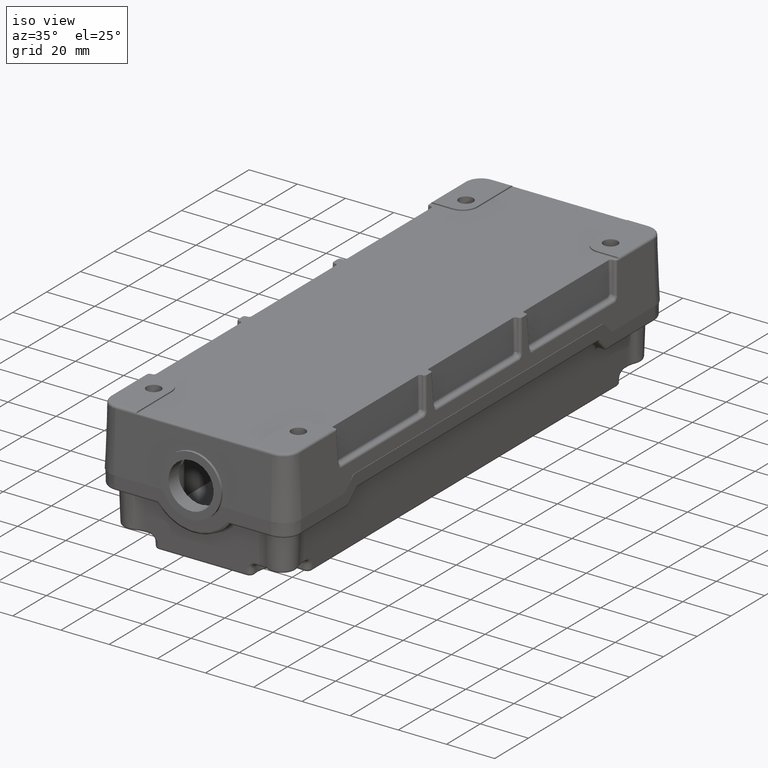
[diagram: clean part render]
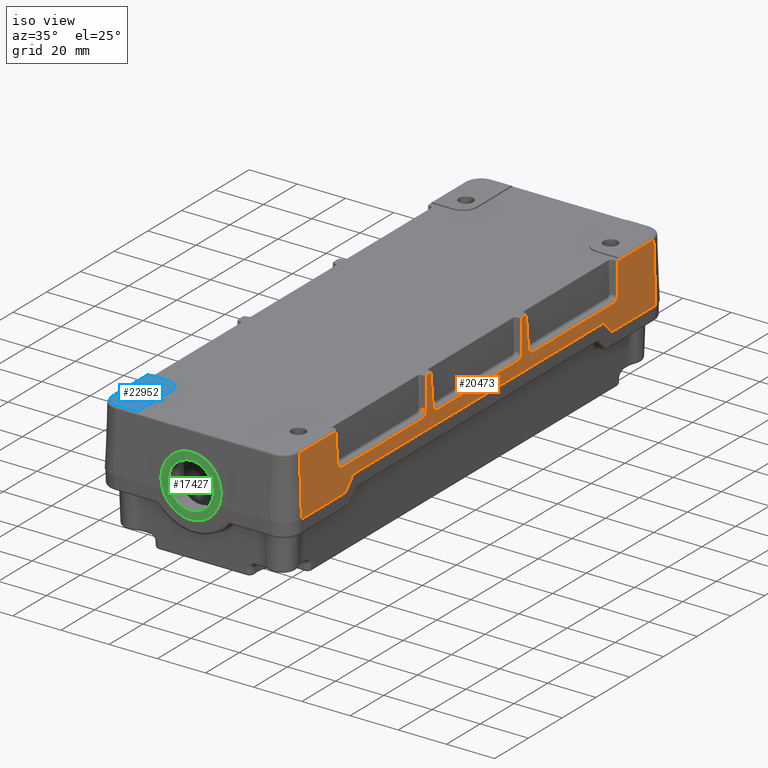
[diagram: same view with three faces highlighted in distinct colors, each labeled with its STEP entity id]
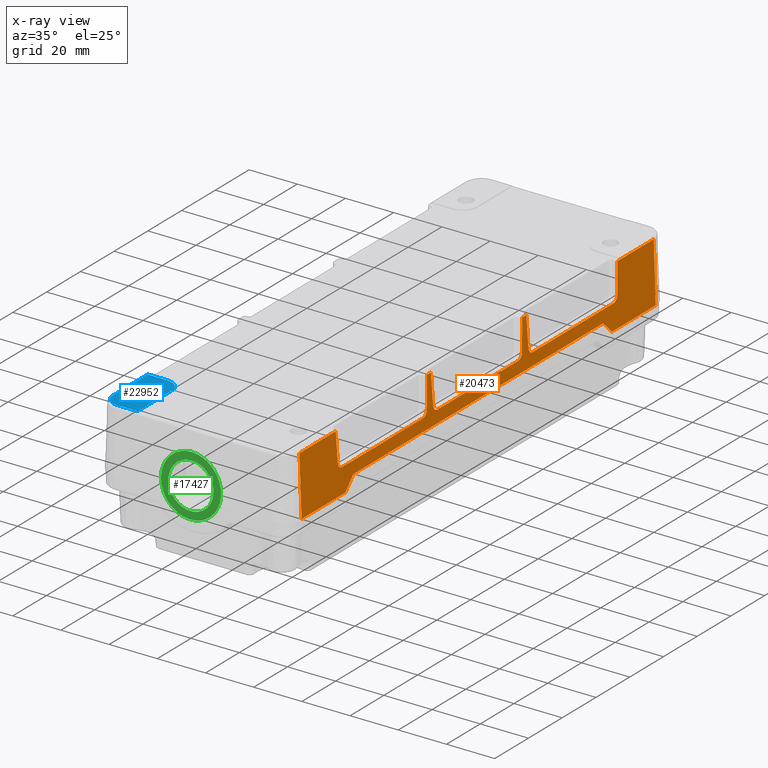
[diagram: x-ray of the same camera — body ghosted, the three highlighted faces saturated]
A machine part, iso view with three faces highlighted in distinct colors.
The next image is the same camera in x-ray (body ghosted, the three faces saturated) — at least one of them is partly hidden behind the body in this view.
Their STEP definitions:

[orange] entity #20473 — the highlighted planar face has unit normal (0.9994, 0, 0.0349).
#11523=CARTESIAN_POINT('',(72.811549176983462,-42.108067806393301,4.999999999999996));
#11524=VERTEX_POINT('',#11523);
#11531=CARTESIAN_POINT('',(72.986153024442203,-47.108067806393294,-4.996004E-015));
#11532=VERTEX_POINT('',#11531);
#11533=CARTESIAN_POINT('',(72.986153024442203,-47.108067806393294,-4.996004E-015));
#11534=DIRECTION('',(-0.024685188407832,0.706891307583163,0.706891307583164));
#11535=VECTOR('',#11534,7.073223204702885);
#11536=LINE('',#11533,#11535);
#11537=EDGE_CURVE('',#11532,#11524,#11536,.T.);
#11561=CARTESIAN_POINT('',(72.811549176983448,105.891932193606720,5.000000000000013));
#11562=VERTEX_POINT('',#11561);
#11569=CARTESIAN_POINT('',(72.811549176983462,-42.108067806393301,4.999999999999996));
#11570=DIRECTION('',(0.0,1.0,0.0));
#11571=VECTOR('',#11570,148.000000000000030);
#11572=LINE('',#11569,#11571);
#11573=EDGE_CURVE('',#11524,#11562,#11572,.T.);
#11585=CARTESIAN_POINT('',(72.986153024442189,110.891932193606720,1.443290E-014));
#11586=VERTEX_POINT('',#11585);
#11593=CARTESIAN_POINT('',(72.811549176983448,105.891932193606720,5.000000000000013));
#11594=DIRECTION('',(0.024685188407832,0.706891307583164,-0.706891307583164));
#11595=VECTOR('',#11594,7.073223204702887);
#11596=LINE('',#11593,#11595);
#11597=EDGE_CURVE('',#11562,#11586,#11596,.T.);
#11631=CARTESIAN_POINT('',(72.986153024442174,136.891932193606690,0.0));
#11632=VERTEX_POINT('',#11631);
#11640=CARTESIAN_POINT('',(72.986153024442189,110.891932193606720,1.443290E-014));
#11641=DIRECTION('',(0.0,1.0,0.0));
#11642=VECTOR('',#11641,25.999999999999972);
#11643=LINE('',#11640,#11642);
#11644=EDGE_CURVE('',#11586,#11632,#11643,.T.);
#17739=CARTESIAN_POINT('',(72.986153024442203,-73.108067806393322,0.0));
#17740=VERTEX_POINT('',#17739);
#17741=CARTESIAN_POINT('',(72.986153024442203,-73.108067806393322,0.0));
#17742=DIRECTION('',(0.0,1.0,0.0));
#17743=VECTOR('',#17742,26.000000000000028);
#17744=LINE('',#17741,#17743);
#17745=EDGE_CURVE('',#17740,#11532,#17744,.T.);
#20206=CARTESIAN_POINT('',(72.129375454614660,-73.108067806393322,24.534899496702497));
#20207=VERTEX_POINT('',#20206);
#20215=CARTESIAN_POINT('',(72.129375454614660,-51.583255500043485,24.534899496702501));
#20216=VERTEX_POINT('',#20215);
#20217=CARTESIAN_POINT('',(72.129375454614660,-73.108067806393322,24.534899496702497));
#20218=DIRECTION('',(0.0,1.0,0.0));
#20219=VECTOR('',#20218,21.524812306349837);
#20220=LINE('',#20217,#20219);
#20221=EDGE_CURVE('',#20207,#20216,#20220,.T.);
#20279=CARTESIAN_POINT('',(72.552993718175856,-50.947505120538622,12.404059606095153));
#20280=VERTEX_POINT('',#20279);
#20281=CARTESIAN_POINT('',(72.129375454614660,-51.583255500043485,24.534899496702501));
#20282=DIRECTION('',(0.034851726289603,0.052304161838420,-0.998022861375938));
#20283=VECTOR('',#20282,12.154871757028689);
#20284=LINE('',#20281,#20283);
#20285=EDGE_CURVE('',#20216,#20280,#20284,.T.);
#20305=CARTESIAN_POINT('',(72.986153024442174,136.891932193606690,0.0));
#20306=DIRECTION('',(0.999390827019096,1.268053E-016,0.034899496702501));
#20307=DIRECTION('',(0.0,1.0,0.0));
#20308=AXIS2_PLACEMENT_3D('',#20305,#20306,#20307);
#20309=PLANE('',#20308);
#20310=ORIENTED_EDGE('',*,*,#11597,.T.);
#20311=ORIENTED_EDGE('',*,*,#11644,.T.);
#20312=CARTESIAN_POINT('',(72.129375454614632,136.891932193606690,24.534899496702497));
#20313=VERTEX_POINT('',#20312);
#20314=CARTESIAN_POINT('',(72.986153024442174,136.891932193606690,0.0));
#20315=DIRECTION('',(-0.034899496702501,0.0,0.999390827019096));
#20316=VECTOR('',#20315,24.549854604812879);
#20317=LINE('',#20314,#20316);
#20318=EDGE_CURVE('',#11632,#20313,#20317,.T.);
#20319=ORIENTED_EDGE('',*,*,#20318,.T.);
#20320=CARTESIAN_POINT('',(72.129375454614646,115.367081412669340,24.534899496702501));
#20321=VERTEX_POINT('',#20320);
#20322=CARTESIAN_POINT('',(72.129375454614646,115.367081412669340,24.534899496702501));
#20323=DIRECTION('',(0.0,1.0,0.0));
#20324=VECTOR('',#20323,21.524850780937356);
#20325=LINE('',#20322,#20324);
#20326=EDGE_CURVE('',#20321,#20313,#20325,.T.);
#20327=ORIENTED_EDGE('',*,*,#20326,.F.);
#20328=CARTESIAN_POINT('',(72.552993718175841,114.731331033164480,12.404059606095146));
#20329=VERTEX_POINT('',#20328);
#20330=CARTESIAN_POINT('',(72.552993718175841,114.731331033164480,12.404059606095146));
#20331=DIRECTION('',(-0.034851726289603,0.052304161838419,0.998022861375938));
#20332=VECTOR('',#20331,12.154871757028694);
#20333=LINE('',#20330,#20332);
#20334=EDGE_CURVE('',#20329,#20321,#20333,.T.);
#20335=ORIENTED_EDGE('',*,*,#20334,.F.);
#20336=CARTESIAN_POINT('',(72.635726612244980,112.234757196278010,10.034899496702504));
#20337=VERTEX_POINT('',#20336);
#20338=CARTESIAN_POINT('',(72.548424688515610,112.234757196278030,12.534899496702504));
#20339=DIRECTION('',(0.999390827019096,1.268053E-016,0.034899496702501));
#20340=DIRECTION('',(0.034899496702501,6.379894E-015,-0.999390827019096));
#20341=AXIS2_PLACEMENT_3D('',#20338,#20339,#20340);
#20342=ELLIPSE('',#20341,2.501523860747054,2.500000000000000);
#20343=EDGE_CURVE('',#20337,#20329,#20342,.T.);
#20344=ORIENTED_EDGE('',*,*,#20343,.F.);
#20345=CARTESIAN_POINT('',(72.635726612244994,64.549068716347819,10.034899496702502));
#20346=VERTEX_POINT('',#20345);
#20347=CARTESIAN_POINT('',(72.635726612244994,64.549068716347819,10.034899496702502));
#20348=DIRECTION('',(0.0,1.0,0.0));
#20349=VECTOR('',#20348,47.685688479930192);
#20350=LINE('',#20347,#20349);
#20351=EDGE_CURVE('',#20346,#20337,#20350,.T.);
#20352=ORIENTED_EDGE('',*,*,#20351,.F.);
#20353=CARTESIAN_POINT('',(72.552993718175841,62.052494879461378,12.404059606095148));
#20354=VERTEX_POINT('',#20353);
#20355=CARTESIAN_POINT('',(72.548424688515624,64.549068716347819,12.534899496702504));
#20356=DIRECTION('',(0.999390827019096,1.268053E-016,0.034899496702501));
#20357=DIRECTION('',(0.034899496702501,-1.220501E-014,-0.999390827019096));
#20358=AXIS2_PLACEMENT_3D('',#20355,#20356,#20357);
#20359=ELLIPSE('',#20358,2.501523860747054,2.500000000000000);
#20360=EDGE_CURVE('',#20354,#20346,#20359,.T.);
#20361=ORIENTED_EDGE('',*,*,#20360,.F.);
#20362=CARTESIAN_POINT('',(72.113133787148499,61.392369615435250,25.000000000000004));
#20363=VERTEX_POINT('',#20362);
#20364=CARTESIAN_POINT('',(72.113133787148499,61.392369615435250,25.000000000000004));
#20365=DIRECTION('',(0.034851726289603,0.052304161838421,-0.998022861375938));
#20366=VECTOR('',#20365,12.620893650210865);
#20367=LINE('',#20364,#20366);
#20368=EDGE_CURVE('',#20363,#20354,#20367,.T.);
#20369=ORIENTED_EDGE('',*,*,#20368,.F.);
#20370=CARTESIAN_POINT('',(72.113133787148499,58.891456297190572,25.000000000000004));
#20371=VERTEX_POINT('',#20370);
#20372=CARTESIAN_POINT('',(72.113133787148499,61.392369615435250,25.000000000000004));
#20373=DIRECTION('',(0.0,-1.0,0.0));
#20374=VECTOR('',#20373,2.500913318244677);
#20375=LINE('',#20372,#20374);
#20376=EDGE_CURVE('',#20363,#20371,#20375,.T.);
#20377=ORIENTED_EDGE('',*,*,#20376,.T.);
#20378=CARTESIAN_POINT('',(72.552993718175841,58.231331033164466,12.404059606095149));
#20379=VERTEX_POINT('',#20378);
#20380=CARTESIAN_POINT('',(72.552993718175841,58.231331033164466,12.404059606095149));
#20381=DIRECTION('',(-0.034851726289603,0.052304161838419,0.998022861375938));
#20382=VECTOR('',#20381,12.620893650210862);
#20383=LINE('',#20380,#20382);
#20384=EDGE_CURVE('',#20379,#20371,#20383,.T.);
#20385=ORIENTED_EDGE('',*,*,#20384,.F.);
#20386=CARTESIAN_POINT('',(72.635726612244994,55.734757196278025,10.034899496702510));
#20387=VERTEX_POINT('',#20386);
#20388=CARTESIAN_POINT('',(72.548424688515624,55.734757196278025,12.534899496702510));
#20389=DIRECTION('',(0.999390827019096,1.268053E-016,0.034899496702501));
#20390=DIRECTION('',(0.034899496702501,1.220501E-014,-0.999390827019096));
#20391=AXIS2_PLACEMENT_3D('',#20388,#20389,#20390);
#20392=ELLIPSE('',#20391,2.501523860747054,2.500000000000000);
#20393=EDGE_CURVE('',#20387,#20379,#20392,.T.);
#20394=ORIENTED_EDGE('',*,*,#20393,.F.);
#20395=CARTESIAN_POINT('',(72.635726612244994,8.049068716347820,10.034899496702508));
#20396=VERTEX_POINT('',#20395);
#20397=CARTESIAN_POINT('',(72.635726612244994,8.049068716347820,10.034899496702508));
#20398=DIRECTION('',(0.0,1.0,0.0));
#20399=VECTOR('',#20398,47.685688479930207);
#20400=LINE('',#20397,#20399);
#20401=EDGE_CURVE('',#20396,#20387,#20400,.T.);
#20402=ORIENTED_EDGE('',*,*,#20401,.F.);
#20403=CARTESIAN_POINT('',(72.552993718175841,5.552494879461386,12.404059606095148));
#20404=VERTEX_POINT('',#20403);
#20405=CARTESIAN_POINT('',(72.548424688515624,8.049068716347822,12.534899496702510));
#20406=DIRECTION('',(0.999390827019096,1.268053E-016,0.034899496702501));
#20407=DIRECTION('',(0.034899496702501,-1.375838E-014,-0.999390827019096));
#20408=AXIS2_PLACEMENT_3D('',#20405,#20406,#20407);
#20409=ELLIPSE('',#20408,2.501523860747054,2.500000000000000);
#20410=EDGE_CURVE('',#20404,#20396,#20409,.T.);
#20411=ORIENTED_EDGE('',*,*,#20410,.F.);
#20412=CARTESIAN_POINT('',(72.113133787148513,4.892369615435257,25.000000000000004));
#20413=VERTEX_POINT('',#20412);
#20414=CARTESIAN_POINT('',(72.113133787148513,4.892369615435257,25.000000000000004));
#20415=DIRECTION('',(0.034851726289602,0.052304161838421,-0.998022861375938));
#20416=VECTOR('',#20415,12.620893650210865);
#20417=LINE('',#20414,#20416);
#20418=EDGE_CURVE('',#20413,#20404,#20417,.T.);
#20419=ORIENTED_EDGE('',*,*,#20418,.F.);
#20420=CARTESIAN_POINT('',(72.113133787148513,2.391456297190562,25.000000000000004));
#20421=VERTEX_POINT('',#20420);
#20422=CARTESIAN_POINT('',(72.113133787148513,4.892369615435257,25.000000000000004));
#20423=DIRECTION('',(0.0,-1.0,0.0));
#20424=VECTOR('',#20423,2.500913318244695);
#20425=LINE('',#20422,#20424);
#20426=EDGE_CURVE('',#20413,#20421,#20425,.T.);
#20427=ORIENTED_EDGE('',*,*,#20426,.T.);
#20428=CARTESIAN_POINT('',(72.552993718175856,1.731331033164454,12.404059606095149));
#20429=VERTEX_POINT('',#20428);
#20430=CARTESIAN_POINT('',(72.552993718175856,1.731331033164454,12.404059606095149));
#20431=DIRECTION('',(-0.034851726289603,0.052304161838419,0.998022861375938));
#20432=VECTOR('',#20431,12.620893650210862);
#20433=LINE('',#20430,#20432);
#20434=EDGE_CURVE('',#20429,#20421,#20433,.T.);
#20435=ORIENTED_EDGE('',*,*,#20434,.F.);
#20436=CARTESIAN_POINT('',(72.635726612244994,-0.765242803721977,10.034899496702510));
#20437=VERTEX_POINT('',#20436);
#20438=CARTESIAN_POINT('',(72.548424688515624,-0.765242803721977,12.534899496702510));
#20439=DIRECTION('',(0.999390827019096,1.268053E-016,0.034899496702501));
#20440=DIRECTION('',(0.034899496702501,1.353647E-014,-0.999390827019096));
#20441=AXIS2_PLACEMENT_3D('',#20438,#20439,#20440);
#20442=ELLIPSE('',#20441,2.501523860747054,2.500000000000000);
#20443=EDGE_CURVE('',#20437,#20429,#20442,.T.);
#20444=ORIENTED_EDGE('',*,*,#20443,.F.);
#20445=CARTESIAN_POINT('',(72.635726612244994,-48.450931283652181,10.034899496702508));
#20446=VERTEX_POINT('',#20445);
#20447=CARTESIAN_POINT('',(72.635726612244994,-48.450931283652181,10.034899496702508));
#20448=DIRECTION('',(0.0,1.0,0.0));
#20449=VECTOR('',#20448,47.685688479930207);
#20450=LINE('',#20447,#20449);
#20451=EDGE_CURVE('',#20446,#20437,#20450,.T.);
#20452=ORIENTED_EDGE('',*,*,#20451,.F.);
#20453=CARTESIAN_POINT('',(72.548424688515624,-48.450931283652181,12.534899496702510));
#20454=DIRECTION('',(0.999390827019096,1.268053E-016,0.034899496702501));
#20455=DIRECTION('',(0.034899496702501,-1.220501E-014,-0.999390827019096));
#20456=AXIS2_PLACEMENT_3D('',#20453,#20454,#20455);
#20457=ELLIPSE('',#20456,2.501523860747054,2.500000000000000);
#20458=EDGE_CURVE('',#20280,#20446,#20457,.T.);
#20459=ORIENTED_EDGE('',*,*,#20458,.F.);
#20460=ORIENTED_EDGE('',*,*,#20285,.F.);
#20461=ORIENTED_EDGE('',*,*,#20221,.F.);
#20462=CARTESIAN_POINT('',(72.986153024442203,-73.108067806393322,0.0));
#20463=DIRECTION('',(-0.034899496702501,0.0,0.999390827019096));
#20464=VECTOR('',#20463,24.549854604812879);
#20465=LINE('',#20462,#20464);
#20466=EDGE_CURVE('',#17740,#20207,#20465,.T.);
#20467=ORIENTED_EDGE('',*,*,#20466,.F.);
#20468=ORIENTED_EDGE('',*,*,#17745,.T.);
#20469=ORIENTED_EDGE('',*,*,#11537,.T.);
#20470=ORIENTED_EDGE('',*,*,#11573,.T.);
#20471=EDGE_LOOP('',(#20310,#20311,#20319,#20327,#20335,#20344,#20352,#20361,#20369,#20377,#20385,#20394,#20402,#20411,#20419,#20427,#20435,#20444,#20452,#20459,#20460,#20461,#20467,#20468,#20469,#20470));
#20472=FACE_OUTER_BOUND('',#20471,.T.);
#20473=ADVANCED_FACE('',(#20472),#20309,.T.);

[blue] entity #22952 — the highlighted planar face has unit normal (0, 0, 1).
#16862=CARTESIAN_POINT('',(5.928882672478243,-60.608067806393116,25.500000000000004));
#16863=VERTEX_POINT('',#16862);
#16864=CARTESIAN_POINT('',(2.928882672478243,-60.608067806393116,25.500000000000004));
#16865=DIRECTION('',(0.0,0.0,-1.0));
#16866=DIRECTION('',(-1.0,0.0,0.0));
#16867=AXIS2_PLACEMENT_3D('',#16864,#16865,#16866);
#16868=CIRCLE('',#16867,3.000000000000000);
#16869=EDGE_CURVE('',#16863,#16863,#16868,.T.);
#20517=CARTESIAN_POINT('',(8.986153024442213,-78.751899409546681,25.500000000000004));
#20518=VERTEX_POINT('',#20517);
#20526=CARTESIAN_POINT('',(0.486153024442223,-78.751899409546681,25.500000000000004));
#20527=VERTEX_POINT('',#20526);
#20528=CARTESIAN_POINT('',(8.986153024442213,-78.751899409546681,25.500000000000004));
#20529=DIRECTION('',(-1.0,0.0,0.0));
#20530=VECTOR('',#20529,8.499999999999991);
#20531=LINE('',#20528,#20530);
#20532=EDGE_CURVE('',#20518,#20527,#20531,.T.);
#22847=CARTESIAN_POINT('',(-5.157678578711128,-73.108067806393322,25.500000000000004));
#22848=VERTEX_POINT('',#22847);
#22856=CARTESIAN_POINT('',(-5.157678578711132,-52.608067806393294,25.500000000000004));
#22857=VERTEX_POINT('',#22856);
#22858=CARTESIAN_POINT('',(-5.157678578711128,-73.108067806393322,25.500000000000004));
#22859=DIRECTION('',(0.0,1.0,0.0));
#22860=VECTOR('',#22859,20.500000000000028);
#22861=LINE('',#22858,#22860);
#22862=EDGE_CURVE('',#22848,#22857,#22861,.T.);
#22881=CARTESIAN_POINT('',(0.486153024442236,-73.108067806393322,25.500000000000004));
#22882=DIRECTION('',(0.0,0.0,-1.000000000000000));
#22883=DIRECTION('',(-0.707106781186548,-0.707106781186547,0.0));
#22884=AXIS2_PLACEMENT_3D('',#22881,#22882,#22883);
#22885=CIRCLE('',#22884,5.643831603153363);
#22886=EDGE_CURVE('',#20527,#22848,#22885,.T.);
#22905=CARTESIAN_POINT('',(2.986153024442213,-52.608067806393294,25.500000000000004));
#22906=VERTEX_POINT('',#22905);
#22907=CARTESIAN_POINT('',(2.986153024442213,-52.608067806393294,25.500000000000004));
#22908=DIRECTION('',(-1.0,0.0,0.0));
#22909=VECTOR('',#22908,8.143831603153345);
#22910=LINE('',#22907,#22909);
#22911=EDGE_CURVE('',#22906,#22857,#22910,.T.);
#22923=CARTESIAN_POINT('',(32.986153024442196,31.891932193606678,25.500000000000004));
#22924=DIRECTION('',(0.0,0.0,1.0));
#22925=DIRECTION('',(1.0,0.0,0.0));
#22926=AXIS2_PLACEMENT_3D('',#22923,#22924,#22925);
#22927=PLANE('',#22926);
#22928=ORIENTED_EDGE('',*,*,#22862,.F.);
#22929=ORIENTED_EDGE('',*,*,#22886,.F.);
#22930=ORIENTED_EDGE('',*,*,#20532,.F.);
#22931=CARTESIAN_POINT('',(8.986153024442213,-58.608067806393301,25.500000000000004));
#22932=VERTEX_POINT('',#22931);
#22933=CARTESIAN_POINT('',(8.986153024442213,-78.751899409546681,25.500000000000004));
#22934=DIRECTION('',(0.0,1.0,0.0));
#22935=VECTOR('',#22934,20.143831603153380);
#22936=LINE('',#22933,#22935);
#22937=EDGE_CURVE('',#20518,#22932,#22936,.T.);
#22938=ORIENTED_EDGE('',*,*,#22937,.T.);
#22939=CARTESIAN_POINT('',(2.986153024442215,-58.608067806393301,25.500000000000004));
#22940=DIRECTION('',(0.0,0.0,1.0));
#22941=DIRECTION('',(-1.0,0.0,0.0));
#22942=AXIS2_PLACEMENT_3D('',#22939,#22940,#22941);
#22943=CIRCLE('',#22942,6.000000000000001);
#22944=EDGE_CURVE('',#22932,#22906,#22943,.T.);
#22945=ORIENTED_EDGE('',*,*,#22944,.T.);
#22946=ORIENTED_EDGE('',*,*,#22911,.T.);
#22947=EDGE_LOOP('',(#22928,#22929,#22930,#22938,#22945,#22946));
#22948=FACE_OUTER_BOUND('',#22947,.T.);
#22949=ORIENTED_EDGE('',*,*,#16869,.T.);
#22950=EDGE_LOOP('',(#22949));
#22951=FACE_BOUND('',#22950,.T.);
#22952=ADVANCED_FACE('',(#22948,#22951),#22927,.T.);

[green] entity #17427 — the highlighted planar face has unit normal (0, -0.9994, 0.0349).
#17400=CARTESIAN_POINT('',(32.986153024442096,-81.434073503233435,5.0));
#17401=DIRECTION('',(0.0,-0.999390827019096,0.034899496702501));
#17402=DIRECTION('',(0.0,-0.034899496702501,-0.999390827019096));
#17403=AXIS2_PLACEMENT_3D('',#17400,#17401,#17402);
#17404=PLANE('',#17403);
#17405=CARTESIAN_POINT('',(32.986153024442103,-80.997563884586583,17.500000000000000));
#17406=VERTEX_POINT('',#17405);
#17407=CARTESIAN_POINT('',(32.986153024442103,-81.434073503233435,4.999999999999999));
#17408=DIRECTION('',(0.0,0.999390827019096,-0.034899496702501));
#17409=DIRECTION('',(-1.784585E-017,-0.034899496702501,-0.999390827019096));
#17410=AXIS2_PLACEMENT_3D('',#17407,#17408,#17409);
#17411=ELLIPSE('',#17410,12.507619303735272,12.500000000000000);
#17412=EDGE_CURVE('',#17406,#17406,#17411,.T.);
#17413=ORIENTED_EDGE('',*,*,#17412,.F.);
#17414=EDGE_LOOP('',(#17413));
#17415=FACE_OUTER_BOUND('',#17414,.T.);
#17416=CARTESIAN_POINT('',(32.986153024442103,-81.107564308485593,14.349999999999998));
#17417=VERTEX_POINT('',#17416);
#17418=CARTESIAN_POINT('',(32.986153024442103,-81.434073503233435,4.999999999999999));
#17419=DIRECTION('',(-9.629650E-035,-0.999390827019096,0.034899496702501));
#17420=DIRECTION('',(-1.784585E-017,-0.034899496702501,-0.999390827019096));
#17421=AXIS2_PLACEMENT_3D('',#17418,#17419,#17420);
#17422=ELLIPSE('',#17421,9.355699239193983,9.350000000000000);
#17423=EDGE_CURVE('',#17417,#17417,#17422,.T.);
#17424=ORIENTED_EDGE('',*,*,#17423,.F.);
#17425=EDGE_LOOP('',(#17424));
#17426=FACE_BOUND('',#17425,.T.);
#17427=ADVANCED_FACE('',(#17415,#17426),#17404,.T.);